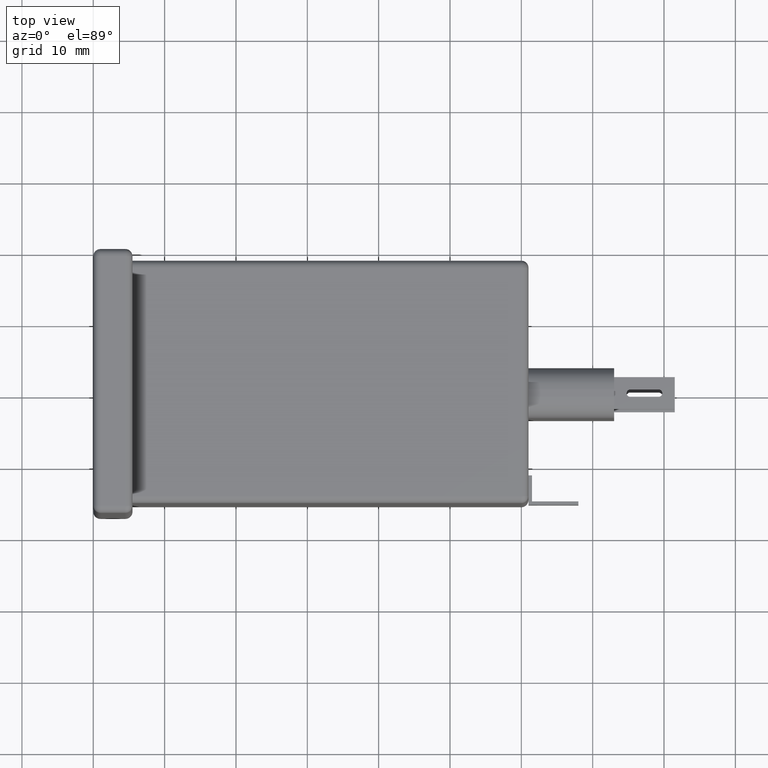
[diagram: clean part render]
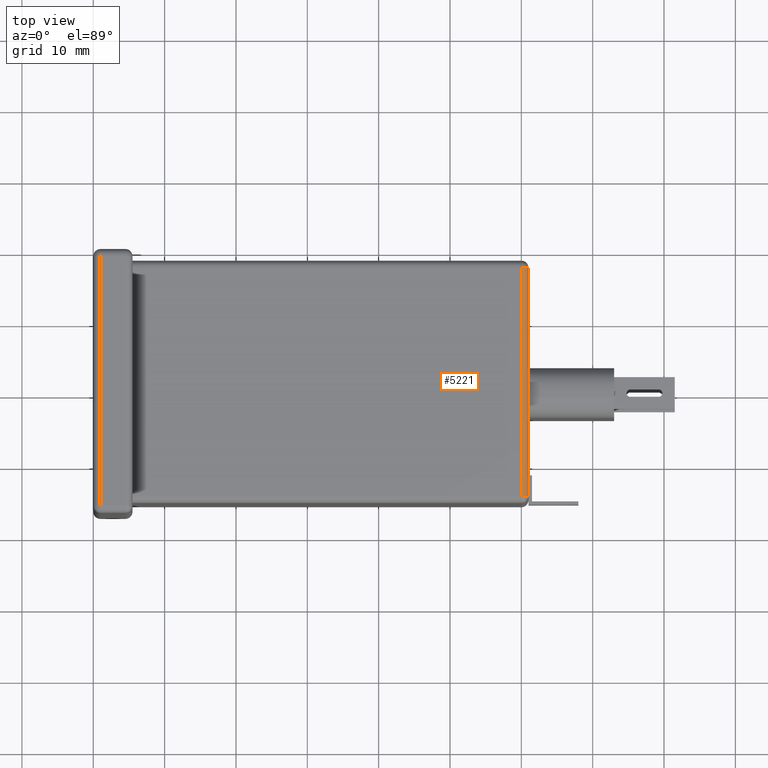
[diagram: same view with one face highlighted and labeled with its STEP entity id]
A machine part, top view. The second image highlights one B-rep face of the part: STEP entity #5221.
In plain terms, the highlighted cylindrical surface (edge-blend (fillet) strip) has radius 1 mm, axis along (-0, 1, 0).
Its self-contained STEP definition (entity closure, byte-faithful):
#142 = LINE ( 'NONE', #2568, #4412 ) ;
#465 = DIRECTION ( 'NONE',  ( -0.0000000000000000000, -1.000000000000000000, -0.0000000000000000000 ) ) ;
#525 = AXIS2_PLACEMENT_3D ( 'NONE', #537, #1150, #5593 ) ;
#537 = CARTESIAN_POINT ( 'NONE',  ( 60.00000000000000000, -34.49999999999999300, 40.99999999999998600 ) ) ;
#542 = VECTOR ( 'NONE', #5753, 1000.000000000000000 ) ;
#993 = CARTESIAN_POINT ( 'NONE',  ( 61.00000000000000000, -2.500000000000008400, 40.99999999999999300 ) ) ;
#1150 = DIRECTION ( 'NONE',  ( 0.0000000000000000000, -1.000000000000000000, 0.0000000000000000000 ) ) ;
#1811 = AXIS2_PLACEMENT_3D ( 'NONE', #3801, #465, #3296 ) ;
#2039 = CYLINDRICAL_SURFACE ( 'NONE', #4164, 1.000000000000000900 ) ;
#2096 = DIRECTION ( 'NONE',  ( 0.0000000000000000000, -2.040851148208014700E-016, 1.000000000000000000 ) ) ;
#2194 = EDGE_CURVE ( 'NONE', #6292, #6492, #3858, .T. ) ;
#2568 = CARTESIAN_POINT ( 'NONE',  ( 60.00000000000000000, -1.500000000000008200, 41.99999999999999300 ) ) ;
#2621 = DIRECTION ( 'NONE',  ( -0.0000000000000000000, 1.000000000000000000, 2.040851148208009200E-016 ) ) ;
#2820 = FACE_OUTER_BOUND ( 'NONE', #3244, .T. ) ;
#2878 = ORIENTED_EDGE ( 'NONE', *, *, #3936, .F. ) ;
#2917 = ORIENTED_EDGE ( 'NONE', *, *, #2194, .F. ) ;
#3081 = VERTEX_POINT ( 'NONE', #5910 ) ;
#3244 = EDGE_LOOP ( 'NONE', ( #6311, #2878, #4183, #2917 ) ) ;
#3296 = DIRECTION ( 'NONE',  ( 0.0000000000000000000, 0.0000000000000000000, 1.000000000000000000 ) ) ;
#3504 = EDGE_CURVE ( 'NONE', #6292, #6992, #4876, .T. ) ;
#3580 = EDGE_CURVE ( 'NONE', #6492, #3081, #4191, .T. ) ;
#3727 = DIRECTION ( 'NONE',  ( -0.0000000000000000000, 1.000000000000000000, 2.040851148208009200E-016 ) ) ;
#3801 = CARTESIAN_POINT ( 'NONE',  ( 60.00000000000000000, -2.500000000000008400, 40.99999999999999300 ) ) ;
#3858 = LINE ( 'NONE', #6776, #542 ) ;
#3936 = EDGE_CURVE ( 'NONE', #3081, #6992, #142, .T. ) ;
#4164 = AXIS2_PLACEMENT_3D ( 'NONE', #7122, #3727, #2096 ) ;
#4183 = ORIENTED_EDGE ( 'NONE', *, *, #3580, .F. ) ;
#4191 = CIRCLE ( 'NONE', #525, 1.000000000000000900 ) ;
#4412 = VECTOR ( 'NONE', #2621, 1000.000000000000000 ) ;
#4497 = CARTESIAN_POINT ( 'NONE',  ( 60.00000000000000000, -2.500000000000008400, 41.99999999999999300 ) ) ;
#4876 = CIRCLE ( 'NONE', #1811, 1.000000000000000900 ) ;
#5221 = ADVANCED_FACE ( 'NONE', ( #2820 ), #2039, .T. ) ;
#5593 = DIRECTION ( 'NONE',  ( 0.0000000000000000000, 0.0000000000000000000, -1.000000000000000000 ) ) ;
#5649 = CARTESIAN_POINT ( 'NONE',  ( 61.00000000000000000, -34.49999999999999300, 40.99999999999998600 ) ) ;
#5753 = DIRECTION ( 'NONE',  ( 0.0000000000000000000, -1.000000000000000000, -2.040851148208009200E-016 ) ) ;
#5910 = CARTESIAN_POINT ( 'NONE',  ( 60.00000000000000000, -34.49999999999999300, 41.99999999999998600 ) ) ;
#6292 = VERTEX_POINT ( 'NONE', #993 ) ;
#6311 = ORIENTED_EDGE ( 'NONE', *, *, #3504, .T. ) ;
#6492 = VERTEX_POINT ( 'NONE', #5649 ) ;
#6776 = CARTESIAN_POINT ( 'NONE',  ( 61.00000000000000000, -35.50000000000000000, 40.99999999999998600 ) ) ;
#6992 = VERTEX_POINT ( 'NONE', #4497 ) ;
#7122 = CARTESIAN_POINT ( 'NONE',  ( 60.00000000000000000, -8.367489707652836500E-015, 40.99999999999999300 ) ) ;